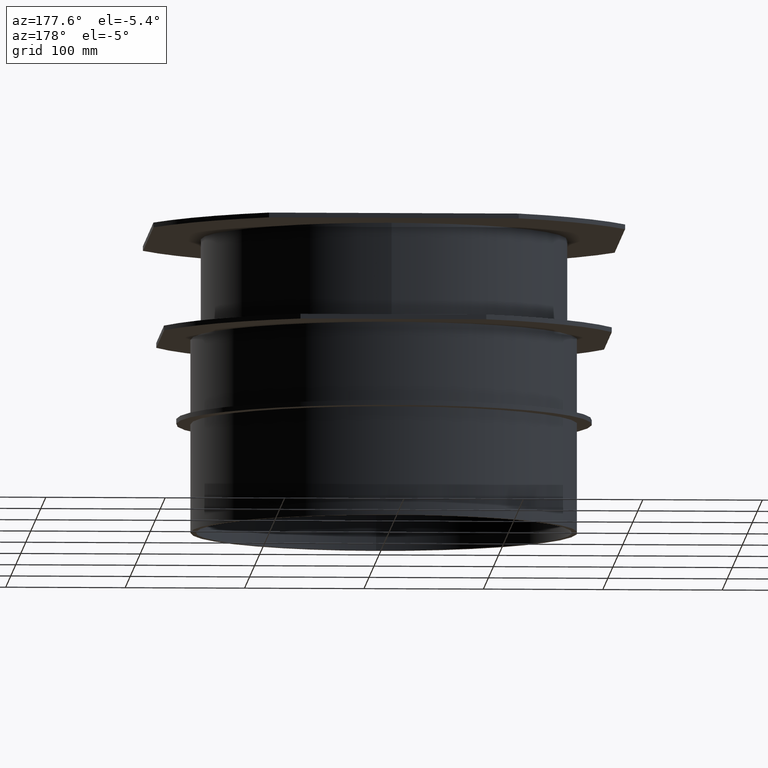
[diagram: clean part render]
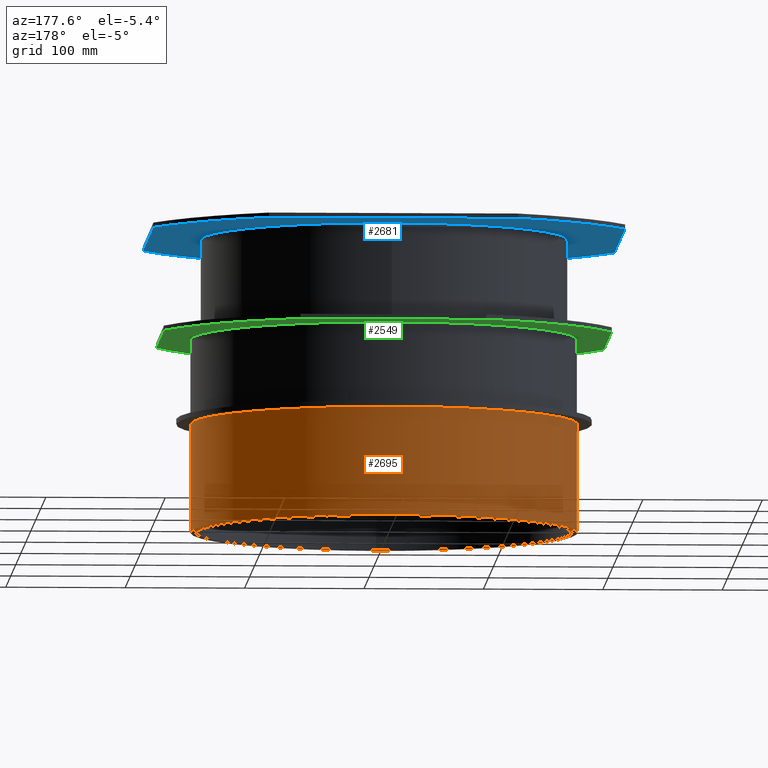
[diagram: same view with three faces highlighted in distinct colors, each labeled with its STEP entity id]
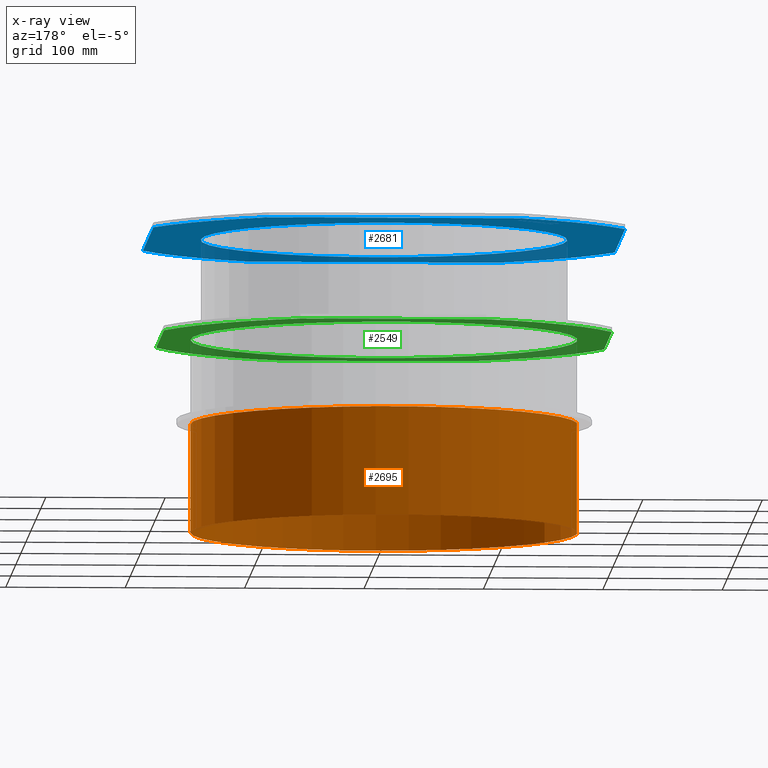
[diagram: x-ray of the same camera — body ghosted, the three highlighted faces saturated]
A machine part, auxiliary view with three faces highlighted in distinct colors.
The next image is the same camera in x-ray (body ghosted, the three faces saturated) — at least one of them is partly hidden behind the body in this view.
Their STEP definitions:

[orange] entity #2695 — the highlighted cylindrical surface (bore or boss wall) has radius 162 mm, axis along (-0, 0, -1).
#149=CYLINDRICAL_SURFACE('',#2856,162.);
#316=FACE_OUTER_BOUND('',#483,.T.);
#483=EDGE_LOOP('',(#2446,#2447,#2448,#2449));
#500=CIRCLE('',#2744,162.);
#513=CIRCLE('',#2857,162.);
#789=LINE('',#4793,#1065);
#1065=VECTOR('',#3416,162.);
#1088=VERTEX_POINT('',#3488);
#1317=VERTEX_POINT('',#4791);
#1346=EDGE_CURVE('',#1088,#1088,#500,.T.);
#1694=EDGE_CURVE('',#1317,#1317,#513,.T.);
#1695=EDGE_CURVE('',#1317,#1088,#789,.T.);
#2446=ORIENTED_EDGE('',*,*,#1694,.F.);
#2447=ORIENTED_EDGE('',*,*,#1695,.T.);
#2448=ORIENTED_EDGE('',*,*,#1346,.T.);
#2449=ORIENTED_EDGE('',*,*,#1695,.F.);
#2695=ADVANCED_FACE('',(#316),#149,.T.);
#2744=AXIS2_PLACEMENT_3D('',#3489,#2927,#2928);
#2856=AXIS2_PLACEMENT_3D('',#4790,#3412,#3413);
#2857=AXIS2_PLACEMENT_3D('',#4792,#3414,#3415);
#2927=DIRECTION('center_axis',(-2.22044604925031E-16,4.93038065763132E-32,
-1.));
#2928=DIRECTION('ref_axis',(2.22044604925031E-16,1.,0.));
#3412=DIRECTION('center_axis',(-2.22044604925031E-16,4.93038065763132E-32,
-1.));
#3413=DIRECTION('ref_axis',(2.22044604925031E-16,1.,0.));
#3414=DIRECTION('center_axis',(-2.22044604925031E-16,4.93038065763132E-32,
-1.));
#3415=DIRECTION('ref_axis',(2.22044604925031E-16,1.,0.));
#3416=DIRECTION('',(2.22044604925031E-16,-4.93038065763132E-32,1.));
#3488=CARTESIAN_POINT('',(-7.14646487912569E-14,-162.,-159.));
#3489=CARTESIAN_POINT('Origin',(-1.56541446472147E-14,3.47591836363008E-30,
-159.));
#4790=CARTESIAN_POINT('Origin',(0.,0.,-88.5));
#4791=CARTESIAN_POINT('',(-9.16707078394347E-14,-162.,-250.));
#4792=CARTESIAN_POINT('Origin',(-3.58602036953926E-14,7.96256476207459E-30,
-250.));
#4793=CARTESIAN_POINT('',(-5.58105041440422E-14,-162.,-88.5));

[blue] entity #2681 — the highlighted planar face has unit normal (-0, 0, -1).
#168=FACE_BOUND('',#469,.T.);
#302=FACE_OUTER_BOUND('',#468,.T.);
#468=EDGE_LOOP('',(#2384,#2385,#2386,#2387,#2388,#2389,#2390,#2391));
#469=EDGE_LOOP('',(#2392));
#507=CIRCLE('',#2837,223.5);
#508=CIRCLE('',#2838,223.5);
#509=CIRCLE('',#2839,223.5);
#510=CIRCLE('',#2840,223.5);
#511=CIRCLE('',#2841,153.5);
#771=LINE('',#4742,#1047);
#774=LINE('',#4748,#1050);
#777=LINE('',#4754,#1053);
#780=LINE('',#4761,#1056);
#1047=VECTOR('',#3350,10.);
#1050=VECTOR('',#3355,10.);
#1053=VECTOR('',#3360,10.);
#1056=VECTOR('',#3367,10.);
#1307=VERTEX_POINT('',#4740);
#1308=VERTEX_POINT('',#4741);
#1309=VERTEX_POINT('',#4746);
#1310=VERTEX_POINT('',#4747);
#1311=VERTEX_POINT('',#4752);
#1312=VERTEX_POINT('',#4753);
#1313=VERTEX_POINT('',#4758);
#1314=VERTEX_POINT('',#4760);
#1315=VERTEX_POINT('',#4765);
#1670=EDGE_CURVE('',#1307,#1308,#771,.T.);
#1673=EDGE_CURVE('',#1309,#1310,#774,.T.);
#1676=EDGE_CURVE('',#1311,#1312,#777,.T.);
#1679=EDGE_CURVE('',#1308,#1313,#507,.T.);
#1680=EDGE_CURVE('',#1313,#1314,#780,.T.);
#1681=EDGE_CURVE('',#1314,#1311,#508,.T.);
#1682=EDGE_CURVE('',#1312,#1309,#509,.T.);
#1683=EDGE_CURVE('',#1310,#1307,#510,.T.);
#1684=EDGE_CURVE('',#1315,#1315,#511,.T.);
#2384=ORIENTED_EDGE('',*,*,#1670,.T.);
#2385=ORIENTED_EDGE('',*,*,#1679,.T.);
#2386=ORIENTED_EDGE('',*,*,#1680,.T.);
#2387=ORIENTED_EDGE('',*,*,#1681,.T.);
#2388=ORIENTED_EDGE('',*,*,#1676,.T.);
#2389=ORIENTED_EDGE('',*,*,#1682,.T.);
#2390=ORIENTED_EDGE('',*,*,#1673,.T.);
#2391=ORIENTED_EDGE('',*,*,#1683,.T.);
#2392=ORIENTED_EDGE('',*,*,#1684,.F.);
#2543=PLANE('',#2836);
#2681=ADVANCED_FACE('',(#302,#168),#2543,.T.);
#2836=AXIS2_PLACEMENT_3D('',#4757,#3363,#3364);
#2837=AXIS2_PLACEMENT_3D('',#4759,#3365,#3366);
#2838=AXIS2_PLACEMENT_3D('',#4762,#3368,#3369);
#2839=AXIS2_PLACEMENT_3D('',#4763,#3370,#3371);
#2840=AXIS2_PLACEMENT_3D('',#4764,#3372,#3373);
#2841=AXIS2_PLACEMENT_3D('',#4766,#3374,#3375);
#3350=DIRECTION('',(-1.,3.83475850529283E-17,2.22044604925031E-16));
#3355=DIRECTION('',(-9.95799250102959E-17,-1.,-2.71926214689378E-32));
#3360=DIRECTION('',(1.,-1.60812264967664E-16,-2.22044604925031E-16));
#3363=DIRECTION('center_axis',(-2.22044604925031E-16,4.93038065763132E-32,
-1.));
#3364=DIRECTION('ref_axis',(1.,-2.22044604925031E-16,-2.22044604925031E-16));
#3365=DIRECTION('center_axis',(-2.22044604925031E-16,4.93038065763132E-32,
-1.));
#3366=DIRECTION('ref_axis',(2.22044604925031E-16,1.,0.));
#3367=DIRECTION('',(2.22044604925031E-16,1.,0.));
#3368=DIRECTION('center_axis',(-2.22044604925031E-16,4.93038065763132E-32,
-1.));
#3369=DIRECTION('ref_axis',(2.22044604925031E-16,1.,0.));
#3370=DIRECTION('center_axis',(-2.22044604925031E-16,4.93038065763132E-32,
-1.));
#3371=DIRECTION('ref_axis',(2.22044604925031E-16,1.,0.));
#3372=DIRECTION('center_axis',(-2.22044604925031E-16,4.93038065763132E-32,
-1.));
#3373=DIRECTION('ref_axis',(2.22044604925031E-16,1.,0.));
#3374=DIRECTION('center_axis',(-2.22044604925031E-16,4.93038065763132E-32,
-1.));
#3375=DIRECTION('ref_axis',(-2.22044604925031E-16,-1.,0.));
#4740=CARTESIAN_POINT('',(104.623133197204,-197.5,-4.));
#4741=CARTESIAN_POINT('',(-104.623133197204,-197.5,-3.99999999999997));
#4742=CARTESIAN_POINT('',(-52.3115665986022,-197.5,-3.99999999999997));
#4746=CARTESIAN_POINT('',(197.5,104.623133197204,-4.00000000000002));
#4747=CARTESIAN_POINT('',(197.5,-104.623133197204,-4.00000000000002));
#4748=CARTESIAN_POINT('',(197.5,-52.3115665986022,-4.00000000000002));
#4752=CARTESIAN_POINT('',(-104.623133197204,197.5,-3.99999999999997));
#4753=CARTESIAN_POINT('',(104.623133197204,197.5,-4.));
#4754=CARTESIAN_POINT('',(52.3115665986022,197.5,-4.));
#4757=CARTESIAN_POINT('Origin',(1.87627691161652E-14,1.07586703398934E-14,
-3.99999999999999));
#4758=CARTESIAN_POINT('',(-197.5,-104.623133197204,-3.99999999999995));
#4759=CARTESIAN_POINT('Origin',(1.87627691161651E-14,-4.16617165569847E-30,
-4.));
#4760=CARTESIAN_POINT('',(-197.5,104.623133197204,-3.99999999999995));
#4761=CARTESIAN_POINT('',(-197.5,52.3115665986023,-3.99999999999995));
#4762=CARTESIAN_POINT('Origin',(1.87627691161651E-14,-4.16617165569847E-30,
-4.));
#4763=CARTESIAN_POINT('Origin',(1.87627691161651E-14,-4.16617165569847E-30,
-4.));
#4764=CARTESIAN_POINT('Origin',(1.87627691161651E-14,-4.16617165569847E-30,
-4.));
#4765=CARTESIAN_POINT('',(3.40482876052456E-14,153.5,-3.99999999999999));
#4766=CARTESIAN_POINT('Origin',(1.87627691161651E-14,-4.16617165569847E-30,
-3.99999999999999));

[green] entity #2549 — the highlighted planar face has unit normal (-0, 0, -1).
#150=FACE_BOUND('',#319,.T.);
#170=FACE_OUTER_BOUND('',#318,.T.);
#318=EDGE_LOOP('',(#1696,#1697,#1698,#1699,#1700,#1701,#1702,#1703));
#319=EDGE_LOOP('',(#1704));
#486=CIRCLE('',#2721,203.);
#487=CIRCLE('',#2722,203.);
#488=CIRCLE('',#2723,203.);
#489=CIRCLE('',#2724,203.);
#490=CIRCLE('',#2725,162.);
#514=LINE('',#3431,#790);
#515=LINE('',#3435,#791);
#516=LINE('',#3439,#792);
#517=LINE('',#3443,#793);
#790=VECTOR('',#2867,10.);
#791=VECTOR('',#2870,10.);
#792=VECTOR('',#2873,10.);
#793=VECTOR('',#2876,10.);
#1066=VERTEX_POINT('',#3429);
#1067=VERTEX_POINT('',#3430);
#1068=VERTEX_POINT('',#3432);
#1069=VERTEX_POINT('',#3434);
#1070=VERTEX_POINT('',#3436);
#1071=VERTEX_POINT('',#3438);
#1072=VERTEX_POINT('',#3440);
#1073=VERTEX_POINT('',#3442);
#1074=VERTEX_POINT('',#3445);
#1318=EDGE_CURVE('',#1066,#1067,#514,.T.);
#1319=EDGE_CURVE('',#1068,#1066,#486,.T.);
#1320=EDGE_CURVE('',#1069,#1068,#515,.T.);
#1321=EDGE_CURVE('',#1070,#1069,#487,.T.);
#1322=EDGE_CURVE('',#1071,#1070,#516,.T.);
#1323=EDGE_CURVE('',#1072,#1071,#488,.T.);
#1324=EDGE_CURVE('',#1073,#1072,#517,.T.);
#1325=EDGE_CURVE('',#1067,#1073,#489,.T.);
#1326=EDGE_CURVE('',#1074,#1074,#490,.T.);
#1696=ORIENTED_EDGE('',*,*,#1318,.F.);
#1697=ORIENTED_EDGE('',*,*,#1319,.F.);
#1698=ORIENTED_EDGE('',*,*,#1320,.F.);
#1699=ORIENTED_EDGE('',*,*,#1321,.F.);
#1700=ORIENTED_EDGE('',*,*,#1322,.F.);
#1701=ORIENTED_EDGE('',*,*,#1323,.F.);
#1702=ORIENTED_EDGE('',*,*,#1324,.F.);
#1703=ORIENTED_EDGE('',*,*,#1325,.F.);
#1704=ORIENTED_EDGE('',*,*,#1326,.T.);
#2452=PLANE('',#2720);
#2549=ADVANCED_FACE('',(#170,#150),#2452,.T.);
#2720=AXIS2_PLACEMENT_3D('',#3428,#2865,#2866);
#2721=AXIS2_PLACEMENT_3D('',#3433,#2868,#2869);
#2722=AXIS2_PLACEMENT_3D('',#3437,#2871,#2872);
#2723=AXIS2_PLACEMENT_3D('',#3441,#2874,#2875);
#2724=AXIS2_PLACEMENT_3D('',#3444,#2877,#2878);
#2725=AXIS2_PLACEMENT_3D('',#3446,#2879,#2880);
#2865=DIRECTION('center_axis',(-2.22044604925031E-16,4.93038065763132E-32,
-1.));
#2866=DIRECTION('ref_axis',(1.,-2.22044604925031E-16,-2.22044604925031E-16));
#2867=DIRECTION('',(1.,6.28059377930107E-18,-2.22044604925031E-16));
#2868=DIRECTION('center_axis',(2.22044604925031E-16,-4.93038065763132E-32,
1.));
#2869=DIRECTION('ref_axis',(1.,-2.22044604925031E-16,-2.22044604925031E-16));
#2870=DIRECTION('',(2.34605792483633E-16,-1.,-1.01396757081465E-31));
#2871=DIRECTION('center_axis',(2.22044604925031E-16,-4.93038065763132E-32,
1.));
#2872=DIRECTION('ref_axis',(1.,-2.22044604925031E-16,-2.22044604925031E-16));
#2873=DIRECTION('',(-1.,4.50369803629364E-16,2.22044604925031E-16));
#2874=DIRECTION('center_axis',(2.22044604925031E-16,-4.93038065763132E-32,
1.));
#2875=DIRECTION('ref_axis',(1.,-2.22044604925031E-16,-2.22044604925031E-16));
#2876=DIRECTION('',(6.78695002333696E-16,1.,-1.01396757081465E-31));
#2877=DIRECTION('center_axis',(2.22044604925031E-16,-4.93038065763132E-32,
1.));
#2878=DIRECTION('ref_axis',(1.,-2.22044604925031E-16,-2.22044604925031E-16));
#2879=DIRECTION('center_axis',(2.22044604925031E-16,-4.93038065763132E-32,
1.));
#2880=DIRECTION('ref_axis',(2.22044604925031E-16,1.,0.));
#3428=CARTESIAN_POINT('Origin',(178.25,-3.95794508278868E-14,-88.));
#3429=CARTESIAN_POINT('',(-77.7994215916802,-187.5,-88.));
#3430=CARTESIAN_POINT('',(77.7994215916802,-187.5,-88.));
#3431=CARTESIAN_POINT('',(50.2252892041599,-187.5,-88.));
#3432=CARTESIAN_POINT('',(-187.5,-77.7994215916802,-88.));
#3433=CARTESIAN_POINT('Origin',(1.11022302462519E-16,-2.46519032881574E-32,
-88.));
#3434=CARTESIAN_POINT('',(-187.5,77.7994215916803,-88.));
#3435=CARTESIAN_POINT('',(-187.5,-38.8997107958402,-88.));
#3436=CARTESIAN_POINT('',(-77.7994215916801,187.5,-88.));
#3437=CARTESIAN_POINT('Origin',(1.11022302462519E-16,-2.46519032881574E-32,
-88.));
#3438=CARTESIAN_POINT('',(77.7994215916803,187.5,-88.));
#3439=CARTESIAN_POINT('',(50.22528920416,187.5,-88.));
#3440=CARTESIAN_POINT('',(187.5,77.7994215916802,-88.));
#3441=CARTESIAN_POINT('Origin',(1.11022302462519E-16,-2.46519032881574E-32,
-88.));
#3442=CARTESIAN_POINT('',(187.5,-77.7994215916803,-88.));
#3443=CARTESIAN_POINT('',(187.5,-38.8997107958402,-88.));
#3444=CARTESIAN_POINT('Origin',(1.11022302462519E-16,-2.46519032881574E-32,
-88.));
#3445=CARTESIAN_POINT('',(-1.60209255492054E-14,-162.,-88.));
#3446=CARTESIAN_POINT('Origin',(1.11022302462516E-16,-2.46519032881566E-32,
-88.));